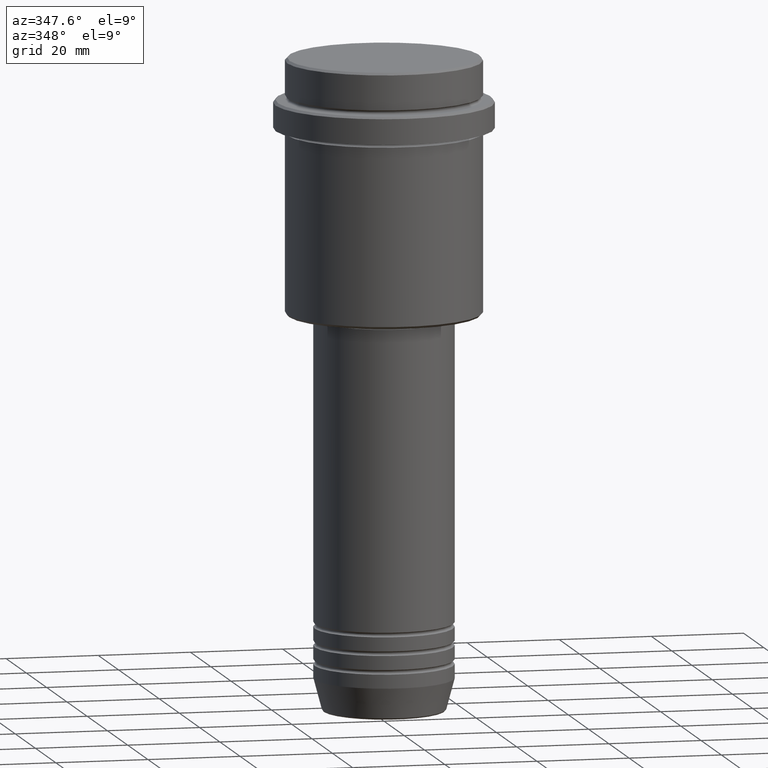
[diagram: clean part render]
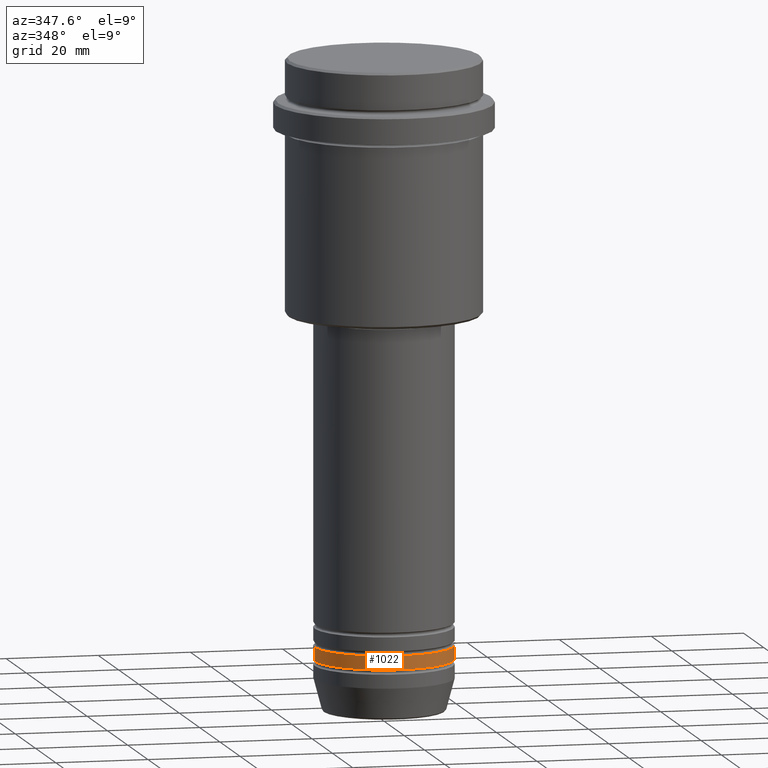
[diagram: same view with one face highlighted and labeled with its STEP entity id]
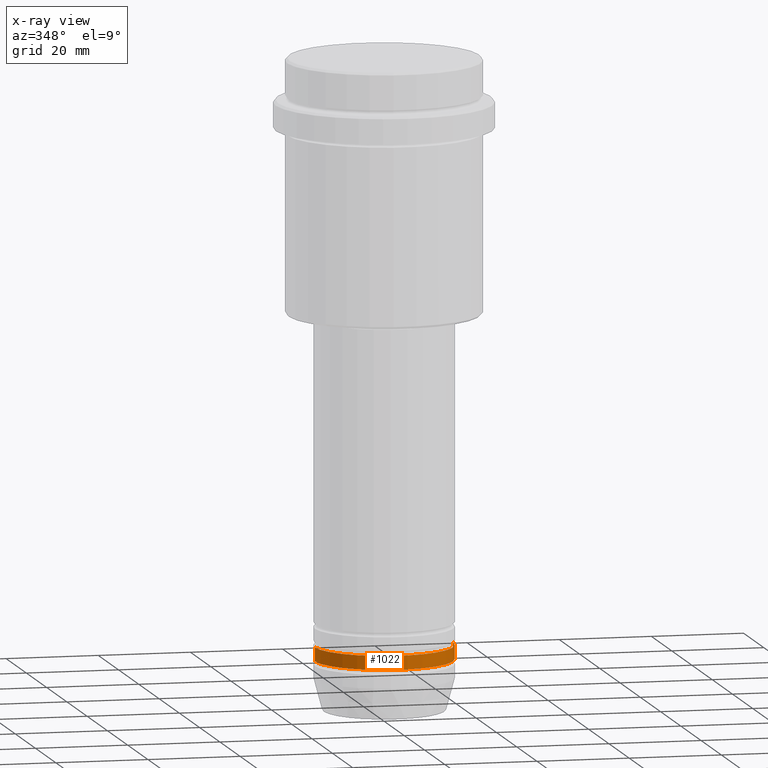
[diagram: x-ray of the same camera — body ghosted, the highlighted face saturated]
A machine part, auxiliary view. The second image highlights one B-rep face of the part: STEP entity #1022.
The next image is the same camera in x-ray: the body ghosted, the highlighted face saturated — about 0% of this face is hidden behind the body in this view.
In plain terms, the highlighted cylindrical surface (partial cylindrical patch) has radius 15 mm, axis along (-0, -0, 1).
Its self-contained STEP definition (entity closure, byte-faithful):
#20 = FACE_OUTER_BOUND ( 'NONE', #982, .T. ) ;
#21 = CARTESIAN_POINT ( 'NONE',  ( -15.00000000000000000, 1.836970198721029589E-15, -125.9999999999998863 ) ) ;
#29 = DIRECTION ( 'NONE',  ( -0.000000000000000000, -0.000000000000000000, 1.000000000000000000 ) ) ;
#40 = DIRECTION ( 'NONE',  ( 1.000000000000000000, 0.000000000000000000, 0.000000000000000000 ) ) ;
#55 = DIRECTION ( 'NONE',  ( -0.000000000000000000, -0.000000000000000000, 1.000000000000000000 ) ) ;
#100 = DIRECTION ( 'NONE',  ( -0.000000000000000000, -0.000000000000000000, 1.000000000000000000 ) ) ;
#104 = EDGE_CURVE ( 'NONE', #617, #781, #202, .T. ) ;
#139 = LINE ( 'NONE', #819, #952 ) ;
#155 = AXIS2_PLACEMENT_3D ( 'NONE', #1417, #100, #1410 ) ;
#202 = CIRCLE ( 'NONE', #1268, 15.00000000000000000 ) ;
#259 = CARTESIAN_POINT ( 'NONE',  ( 0.000000000000000000, 0.000000000000000000, -125.9999999999998863 ) ) ;
#264 = ORIENTED_EDGE ( 'NONE', *, *, #104, .F. ) ;
#296 = ORIENTED_EDGE ( 'NONE', *, *, #470, .F. ) ;
#341 = CYLINDRICAL_SURFACE ( 'NONE', #628, 15.00000000000000000 ) ;
#452 = CARTESIAN_POINT ( 'NONE',  ( 0.000000000000000000, 0.000000000000000000, 0.000000000000000000 ) ) ;
#470 = EDGE_CURVE ( 'NONE', #709, #617, #544, .T. ) ;
#544 = LINE ( 'NONE', #779, #1110 ) ;
#617 = VERTEX_POINT ( 'NONE', #21 ) ;
#628 = AXIS2_PLACEMENT_3D ( 'NONE', #452, #1323, #40 ) ;
#709 = VERTEX_POINT ( 'NONE', #842 ) ;
#768 = CIRCLE ( 'NONE', #155, 15.00000000000000000 ) ;
#779 = CARTESIAN_POINT ( 'NONE',  ( -15.00000000000000000, 1.836970198721029589E-15, 0.000000000000000000 ) ) ;
#781 = VERTEX_POINT ( 'NONE', #1060 ) ;
#806 = DIRECTION ( 'NONE',  ( 1.000000000000000000, 0.000000000000000000, 0.000000000000000000 ) ) ;
#819 = CARTESIAN_POINT ( 'NONE',  ( 15.00000000000000000, 0.000000000000000000, 0.000000000000000000 ) ) ;
#842 = CARTESIAN_POINT ( 'NONE',  ( -15.00000000000000000, 1.836970198721029589E-15, -128.9999999999998863 ) ) ;
#843 = VERTEX_POINT ( 'NONE', #1195 ) ;
#880 = ORIENTED_EDGE ( 'NONE', *, *, #1330, .T. ) ;
#952 = VECTOR ( 'NONE', #55, 1000.000000000000000 ) ;
#982 = EDGE_LOOP ( 'NONE', ( #296, #880, #1090, #264 ) ) ;
#1022 = ADVANCED_FACE ( 'NONE', ( #20 ), #341, .T. ) ;
#1060 = CARTESIAN_POINT ( 'NONE',  ( 15.00000000000000000, 0.000000000000000000, -125.9999999999998863 ) ) ;
#1090 = ORIENTED_EDGE ( 'NONE', *, *, #1391, .T. ) ;
#1110 = VECTOR ( 'NONE', #1184, 1000.000000000000000 ) ;
#1184 = DIRECTION ( 'NONE',  ( -0.000000000000000000, -0.000000000000000000, 1.000000000000000000 ) ) ;
#1195 = CARTESIAN_POINT ( 'NONE',  ( 15.00000000000000000, 0.000000000000000000, -128.9999999999998863 ) ) ;
#1268 = AXIS2_PLACEMENT_3D ( 'NONE', #259, #29, #806 ) ;
#1323 = DIRECTION ( 'NONE',  ( -0.000000000000000000, -0.000000000000000000, 1.000000000000000000 ) ) ;
#1330 = EDGE_CURVE ( 'NONE', #709, #843, #768, .T. ) ;
#1391 = EDGE_CURVE ( 'NONE', #843, #781, #139, .T. ) ;
#1410 = DIRECTION ( 'NONE',  ( 1.000000000000000000, 0.000000000000000000, 0.000000000000000000 ) ) ;
#1417 = CARTESIAN_POINT ( 'NONE',  ( 0.000000000000000000, 0.000000000000000000, -128.9999999999998863 ) ) ;